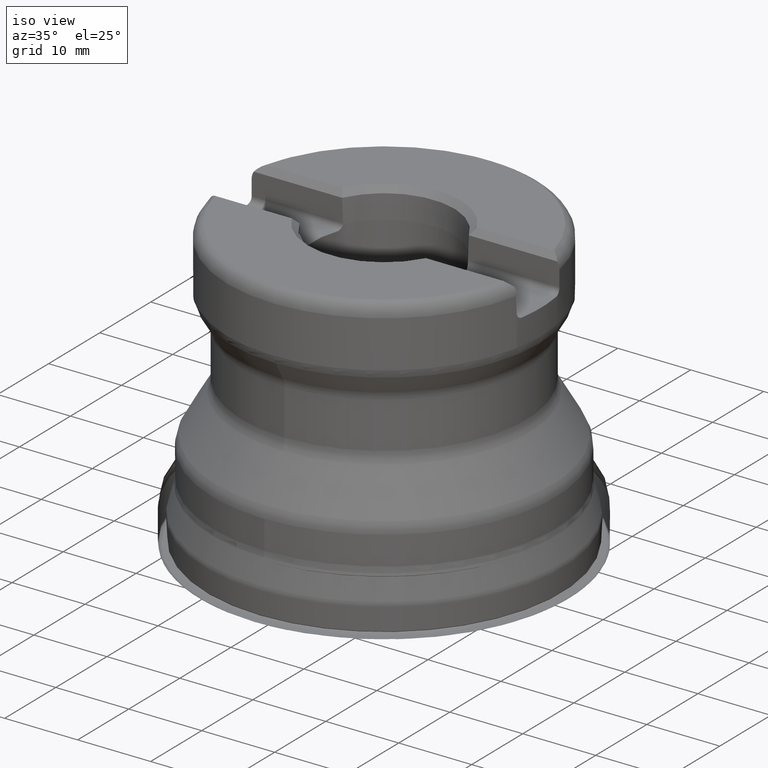
[diagram: clean part render]
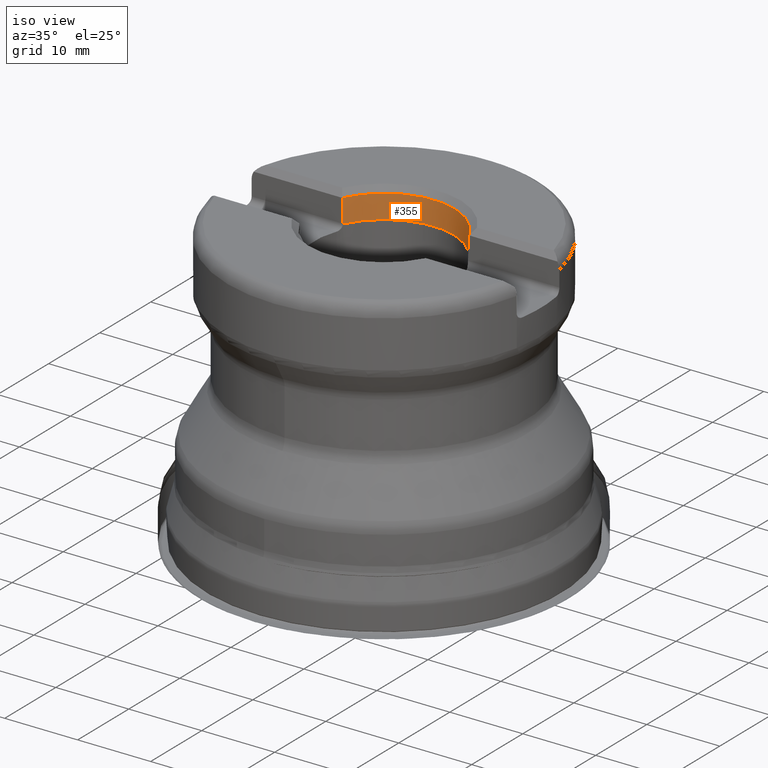
[diagram: same view with one face highlighted and labeled with its STEP entity id]
A machine part, iso view. The second image highlights one B-rep face of the part: STEP entity #355.
In plain terms, the highlighted conical surface has half-angle 2 deg.
Its self-contained STEP definition (entity closure, byte-faithful):
#269=ELLIPSE('',#1185,13.4386212544074,9.49674446680619);
#270=ELLIPSE('',#1187,13.4386212544074,9.49674446680619);
#272=CONICAL_SURFACE('',#1189,9.525,2.);
#355=ADVANCED_FACE('',(#446),#272,.F.);
#446=FACE_OUTER_BOUND('',#468,.T.);
#468=EDGE_LOOP('',(#620,#621,#622,#623,#624,#625,#626,#627));
#620=ORIENTED_EDGE('',*,*,#949,.T.);
#621=ORIENTED_EDGE('',*,*,#950,.T.);
#622=ORIENTED_EDGE('',*,*,#951,.T.);
#623=ORIENTED_EDGE('',*,*,#952,.T.);
#624=ORIENTED_EDGE('',*,*,#940,.T.);
#625=ORIENTED_EDGE('',*,*,#953,.T.);
#626=ORIENTED_EDGE('',*,*,#954,.T.);
#627=ORIENTED_EDGE('',*,*,#955,.T.);
#843=VERTEX_POINT('',#1903);
#844=VERTEX_POINT('',#1904);
#850=VERTEX_POINT('',#1939);
#851=VERTEX_POINT('',#1940);
#852=VERTEX_POINT('',#1942);
#853=VERTEX_POINT('',#1944);
#854=VERTEX_POINT('',#1950);
#855=VERTEX_POINT('',#1952);
#940=EDGE_CURVE('',#843,#844,#1138,.T.);
#949=EDGE_CURVE('',#850,#851,#1142,.T.);
#950=EDGE_CURVE('',#851,#852,#269,.T.);
#951=EDGE_CURVE('',#852,#853,#1047,.T.);
#952=EDGE_CURVE('',#853,#843,#270,.T.);
#953=EDGE_CURVE('',#844,#854,#1143,.T.);
#954=EDGE_CURVE('',#854,#855,#1048,.T.);
#955=EDGE_CURVE('',#855,#850,#1144,.T.);
#1047=CIRCLE('',#1186,9.63676348060499);
#1048=CIRCLE('',#1188,9.525);
#1138=B_SPLINE_CURVE_WITH_KNOTS('',3,(#1896,#1897,#1898,#1899,#1900,#1901,
#1902),.UNSPECIFIED.,.F.,.F.,(4,3,4),(0.,0.359001715786988,1.),
 .UNSPECIFIED.);
#1142=B_SPLINE_CURVE_WITH_KNOTS('',3,(#1932,#1933,#1934,#1935,#1936,#1937,
#1938),.UNSPECIFIED.,.F.,.F.,(4,3,4),(0.,0.640998284213012,1.),
 .UNSPECIFIED.);
#1143=B_SPLINE_CURVE_WITH_KNOTS('',3,(#1946,#1947,#1948,#1949),
 .UNSPECIFIED.,.F.,.F.,(4,4),(0.,1.),.UNSPECIFIED.);
#1144=B_SPLINE_CURVE_WITH_KNOTS('',3,(#1953,#1954,#1955,#1956),
 .UNSPECIFIED.,.F.,.F.,(4,4),(0.,1.),.UNSPECIFIED.);
#1185=AXIS2_PLACEMENT_3D('',#1941,#1326,#1327);
#1186=AXIS2_PLACEMENT_3D('',#1943,#1328,#1329);
#1187=AXIS2_PLACEMENT_3D('',#1945,#1330,#1331);
#1188=AXIS2_PLACEMENT_3D('',#1951,#1332,#1333);
#1189=AXIS2_PLACEMENT_3D('',#1957,#1334,#1335);
#1326=DIRECTION('',(0.,-0.707106781186548,0.707106781186547));
#1327=DIRECTION('',(0.,0.707106781186547,0.707106781186548));
#1328=DIRECTION('',(0.,1.17145536458252E-15,1.));
#1329=DIRECTION('',(0.,1.,-1.44008803741474E-15));
#1330=DIRECTION('',(0.,-0.707106781186548,0.707106781186547));
#1331=DIRECTION('',(0.,0.707106781186547,0.707106781186548));
#1332=DIRECTION('',(0.,-1.17145536458252E-15,-1.));
#1333=DIRECTION('',(0.,-1.,1.45698559662094E-15));
#1334=DIRECTION('',(0.,1.17145536458252E-15,1.));
#1335=DIRECTION('',(0.,-1.,1.71732504163644E-15));
#1896=CARTESIAN_POINT('',(-8.6854048483689,4.17500000000005,39.078));
#1897=CARTESIAN_POINT('',(-8.67079953540332,4.17500000000005,38.7010474406744));
#1898=CARTESIAN_POINT('',(-8.65618731825944,4.17500000000005,38.3240951487913));
#1899=CARTESIAN_POINT('',(-8.64156809137656,4.17500000000005,37.9471431288282));
#1900=CARTESIAN_POINT('',(-8.61546543257466,4.17500000000004,37.2740945442065));
#1901=CARTESIAN_POINT('',(-8.58934042794329,4.17500000000004,36.6010468258247));
#1902=CARTESIAN_POINT('',(-8.56319245851635,4.17500000000004,35.928));
#1903=CARTESIAN_POINT('',(-8.6854048483689,4.17500000000005,39.078));
#1904=CARTESIAN_POINT('',(-8.56319245851635,4.17500000000004,35.928));
#1932=CARTESIAN_POINT('',(8.56319245851635,4.17500000000004,35.928));
#1933=CARTESIAN_POINT('',(8.58934042794329,4.17500000000004,36.6010468258247));
#1934=CARTESIAN_POINT('',(8.61546543257466,4.17500000000004,37.2740945442065));
#1935=CARTESIAN_POINT('',(8.64156809137656,4.17500000000005,37.9471431288282));
#1936=CARTESIAN_POINT('',(8.65618731825944,4.17500000000005,38.3240951487913));
#1937=CARTESIAN_POINT('',(8.67079953540332,4.17500000000005,38.7010474406744));
#1938=CARTESIAN_POINT('',(8.6854048483689,4.17500000000005,39.078));
#1939=CARTESIAN_POINT('',(8.56319245851635,4.17500000000004,35.928));
#1940=CARTESIAN_POINT('',(8.6854048483689,4.17500000000005,39.078));
#1941=CARTESIAN_POINT('',(0.,0.33183601656644,35.2348360165664));
#1942=CARTESIAN_POINT('',(8.68518945493481,4.17548733838477,39.0784873383847));
#1943=CARTESIAN_POINT('',(0.,4.5778703632321E-14,39.0784873383847));
#1944=CARTESIAN_POINT('',(-8.68518945493481,4.17548733838477,39.0784873383847));
#1945=CARTESIAN_POINT('',(0.,0.33183601656644,35.2348360165664));
#1946=CARTESIAN_POINT('',(-8.56319245851635,4.17500000000004,35.928));
#1947=CARTESIAN_POINT('',(-8.56254494759417,4.17500000000004,35.9113331160923));
#1948=CARTESIAN_POINT('',(-8.56215101254515,4.17447840123097,35.8946462737426));
#1949=CARTESIAN_POINT('',(-8.56201245005217,4.17343597113361,35.878));
#1950=CARTESIAN_POINT('',(-8.56201245005217,4.17343597113361,35.878));
#1951=CARTESIAN_POINT('',(0.,4.20294755704918E-14,35.878));
#1952=CARTESIAN_POINT('',(8.56201245005217,4.17343597113361,35.878));
#1953=CARTESIAN_POINT('',(8.56201245005217,4.17343597113361,35.878));
#1954=CARTESIAN_POINT('',(8.56215101254515,4.17447840123097,35.8946462737426));
#1955=CARTESIAN_POINT('',(8.56254494759417,4.17500000000004,35.9113331160923));
#1956=CARTESIAN_POINT('',(8.56319245851635,4.17500000000004,35.928));
#1957=CARTESIAN_POINT('',(0.,4.20294755704918E-14,35.878));